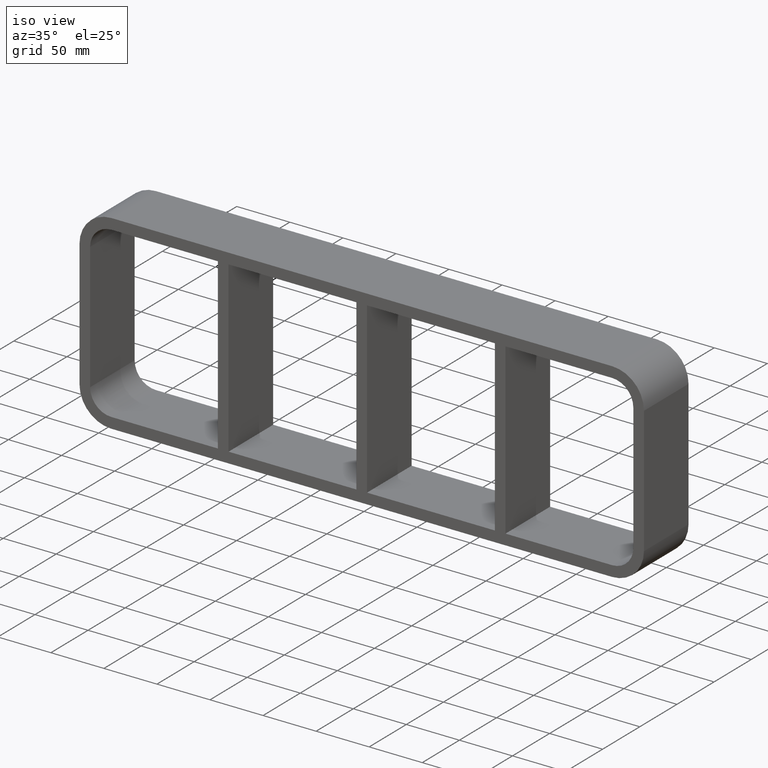
[diagram: clean part render]
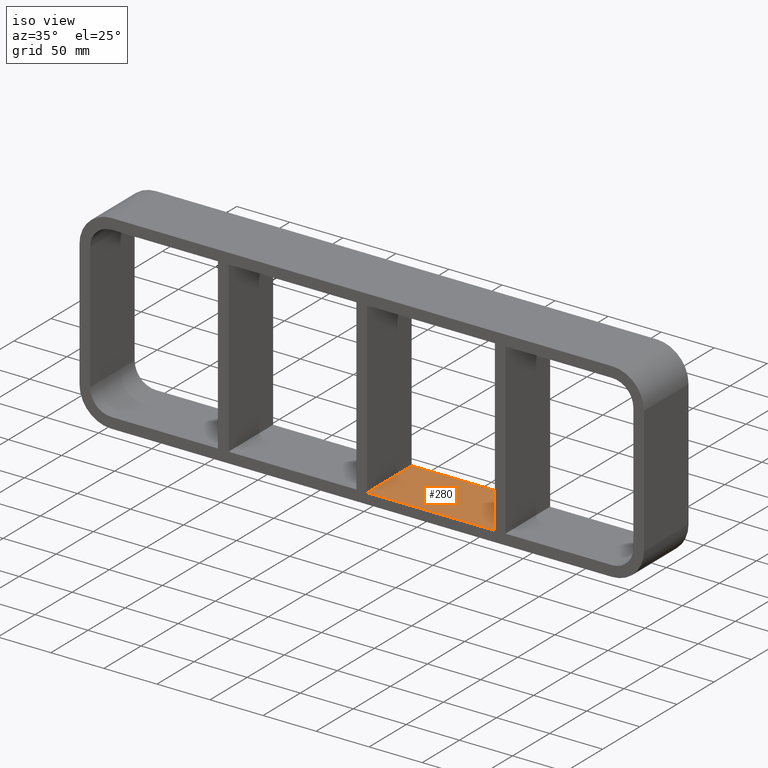
[diagram: same view with one face highlighted and labeled with its STEP entity id]
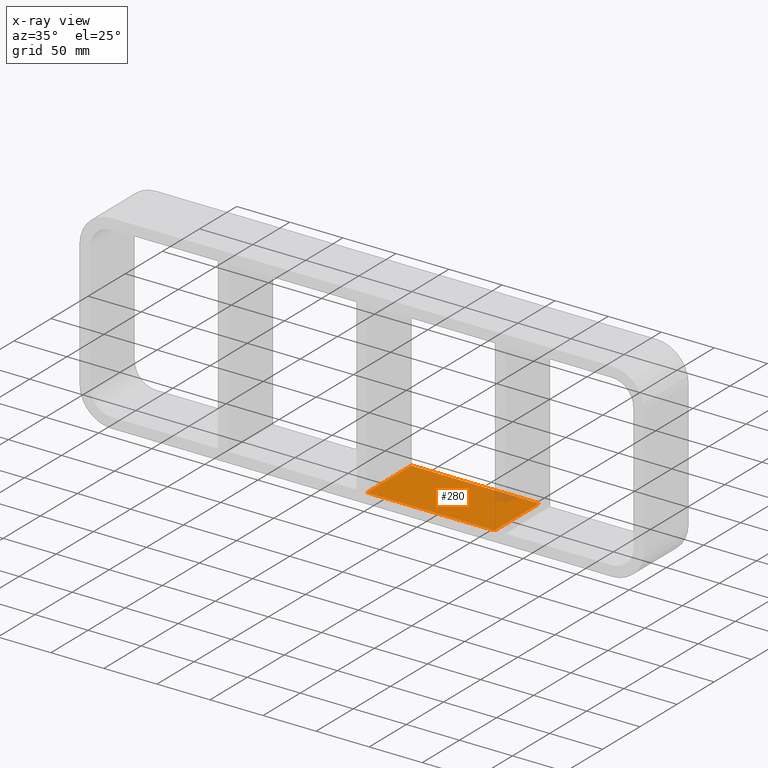
[diagram: x-ray of the same camera — body ghosted, the highlighted face saturated]
A machine part, iso view. The second image highlights one B-rep face of the part: STEP entity #280.
The next image is the same camera in x-ray: the body ghosted, the highlighted face saturated — about 3% of this face is hidden behind the body in this view.
In plain terms, the highlighted planar face has unit normal (0, 0, -1).
Its self-contained STEP definition (entity closure, byte-faithful):
#73=CARTESIAN_POINT('',(125.49999999999866,-3.0,-79.750000000000014));
#74=VERTEX_POINT('',#73);
#91=CARTESIAN_POINT('',(125.49999999999866,57.0,-79.750000000000014));
#92=VERTEX_POINT('',#91);
#99=CARTESIAN_POINT('',(125.49999999999866,-3.0,-79.750000000000014));
#100=DIRECTION('',(0.0,1.0,0.0));
#101=VECTOR('',#100,60.000000000000007);
#102=LINE('',#99,#101);
#103=EDGE_CURVE('',#74,#92,#102,.T.);
#195=CARTESIAN_POINT('',(5.000000000007283,-3.0,-79.74999999998424));
#196=VERTEX_POINT('',#195);
#203=CARTESIAN_POINT('',(5.000000000007283,57.0,-79.74999999998424));
#204=VERTEX_POINT('',#203);
#205=CARTESIAN_POINT('',(5.000000000007283,57.000000000000007,-79.750000000000014));
#206=DIRECTION('',(0.0,-1.0,0.0));
#207=VECTOR('',#206,60.000000000000007);
#208=LINE('',#205,#207);
#209=EDGE_CURVE('',#204,#196,#208,.T.);
#259=CARTESIAN_POINT('',(256.00000000000006,0.0,-79.750000000000014));
#260=DIRECTION('',(0.0,0.0,-1.0));
#261=DIRECTION('',(-1.0,0.0,0.0));
#262=AXIS2_PLACEMENT_3D('',#259,#260,#261);
#263=PLANE('',#262);
#264=ORIENTED_EDGE('',*,*,#103,.T.);
#265=CARTESIAN_POINT('',(5.00000000000729,57.0,-79.750000000000014));
#266=DIRECTION('',(1.0,0.0,0.0));
#267=VECTOR('',#266,120.49999999999137);
#268=LINE('',#265,#267);
#269=EDGE_CURVE('',#204,#92,#268,.T.);
#270=ORIENTED_EDGE('',*,*,#269,.F.);
#271=ORIENTED_EDGE('',*,*,#209,.T.);
#272=CARTESIAN_POINT('',(125.49999999999866,-3.0,-79.750000000000014));
#273=DIRECTION('',(-1.0,0.0,0.0));
#274=VECTOR('',#273,120.49999999999137);
#275=LINE('',#272,#274);
#276=EDGE_CURVE('',#74,#196,#275,.T.);
#277=ORIENTED_EDGE('',*,*,#276,.F.);
#278=EDGE_LOOP('',(#264,#270,#271,#277));
#279=FACE_OUTER_BOUND('',#278,.T.);
#280=ADVANCED_FACE('',(#279),#263,.F.);